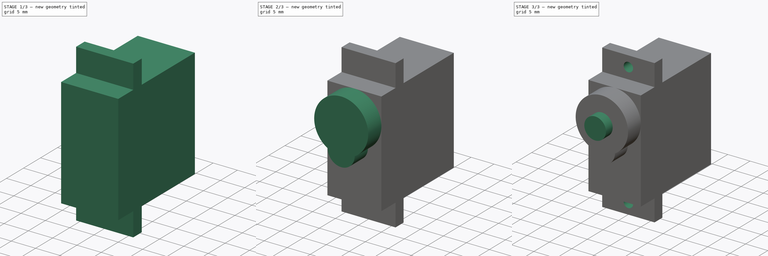
[diagram: build sequence overview — one tinted view per stage of 3, left to right]
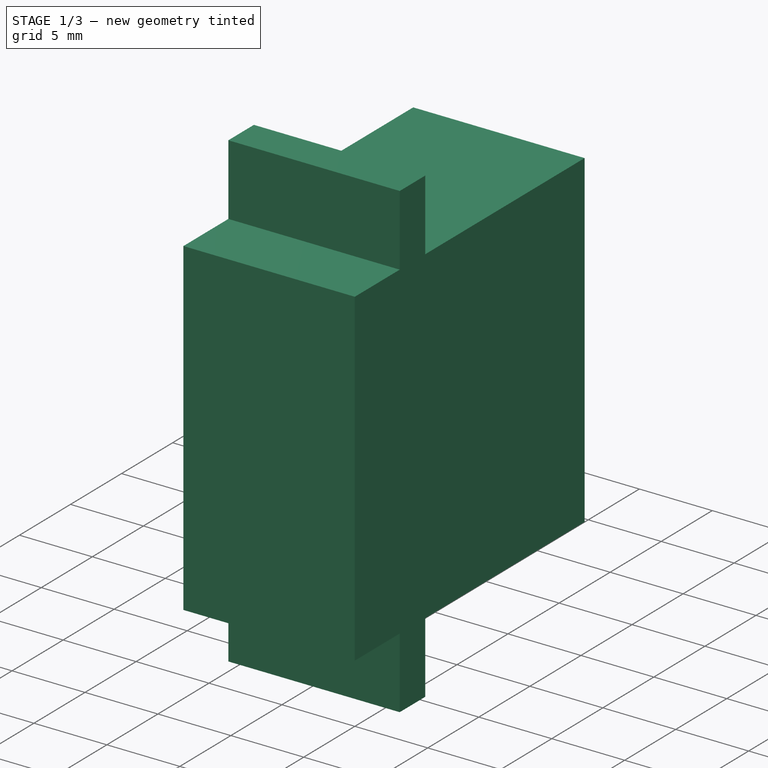
[diagram: stage 1 of 3 — iso view after this stage's code; geometry added in this stage tinted green]
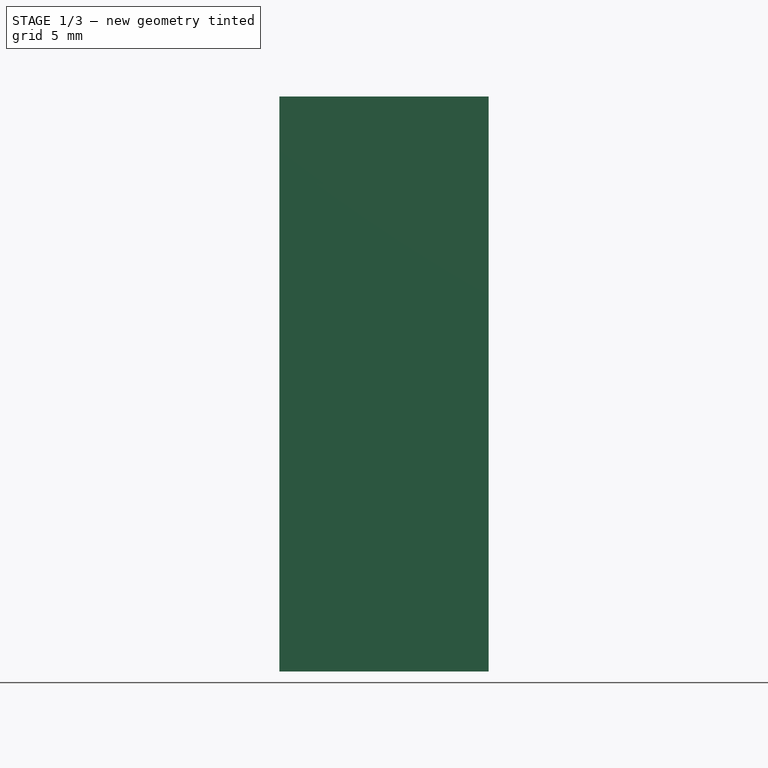
[diagram: stage 1 of 3 — front view after this stage's code; geometry added in this stage tinted green]
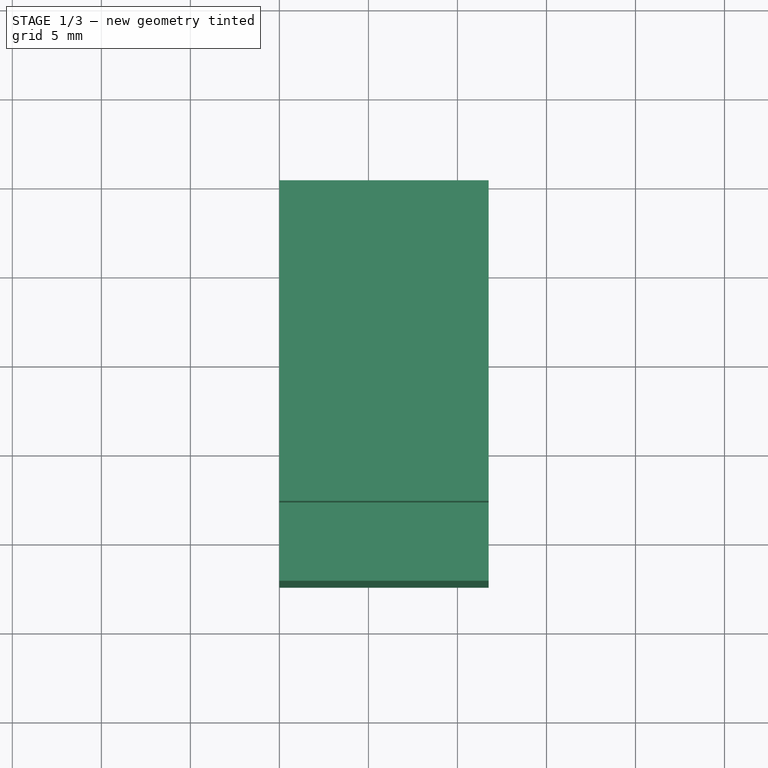
[diagram: stage 1 of 3 — top view after this stage's code; geometry added in this stage tinted green]
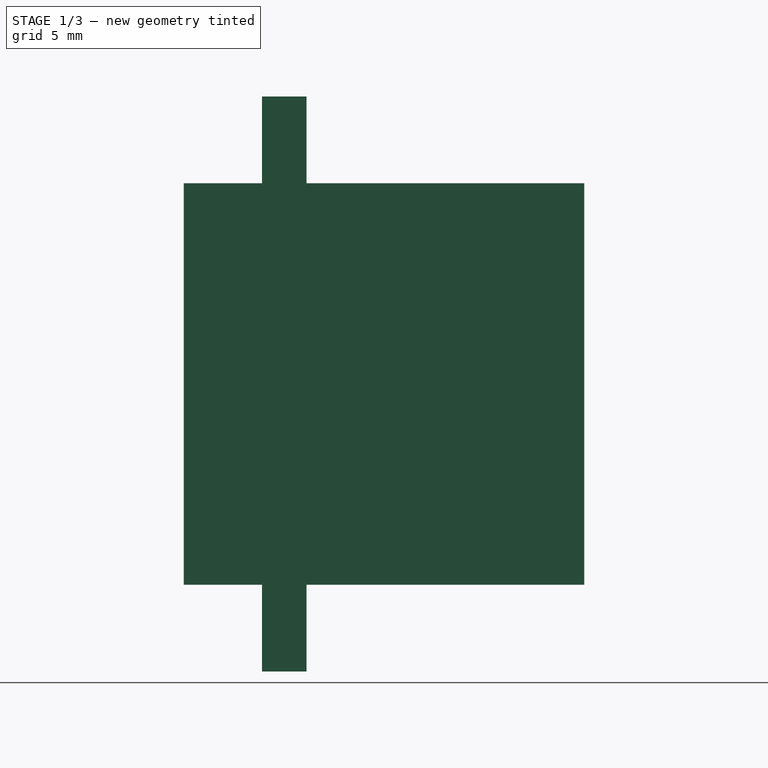
[diagram: stage 1 of 3 — right view after this stage's code; geometry added in this stage tinted green]
FCSTD DOCUMENT  (FreeCAD 0.19R24267 +148 (Git))
Label: Servo
License: All rights reserved
LicenseURL: http://en.wikipedia.org/wiki/All_rights_reserved
objects: Sketcher::SketchObject×5, PartDesign::Pad×3, PartDesign::Pocket×2, PartDesign::Body×1
note: 16 computed .brp shape members not serialized (recipe doc carries the construction recipe); baked Part::Feature solids carry a one-line shape summary decoded from their .brp

FEATURE [Sketcher::SketchObject] Sketch
  FullyConstrained = true
  MapMode = 5
  Placement = pos=(0,0,0) rot=(1,0,0;1.5708rad)
  Support = -> [XZ_Plane]
  sketch-geometry (4):
    g0: LineSegment StartX=0 StartY=0 StartZ=0 EndX=11.75 EndY=0 EndZ=0
    g1: LineSegment StartX=11.75 StartY=0 StartZ=0 EndX=11.75 EndY=32.3 EndZ=0
    g2: LineSegment StartX=11.75 StartY=32.3 StartZ=0 EndX=0 EndY=32.3 EndZ=0
    g3: LineSegment StartX=0 StartY=32.3 StartZ=0 EndX=0 EndY=0 EndZ=0
  constraints (11):
    c: Coincident(g0,g1)
    c: Coincident(g1,g2)
    c: Coincident(g2,g3)
    c: Coincident(g3,g0)
    c: Horizontal(g0)
    c: Horizontal(g2)
    c: Vertical(g1)
    c: Vertical(g3)
    c: Coincident(g0,g-1)
    c: DistanceY(g1,g1) = 32.3
    c: DistanceX(g2,g2) = 11.75
FEATURE [PartDesign::Pad] Pad
  Direction = (1,1,1)
  Length = 22.5
  Length2 = 100
  Placement = pos=(0,0,0) rot=(1,0,0;1.5708rad)
  Profile = -> Sketch
  Type = 0
FEATURE [Sketcher::SketchObject] Sketch001
  ExternalGeometry = -> [Pad]
  FullyConstrained = true
  MapMode = 5
  Placement = pos=(11.75,0,0) rot=(0.707107,0,0.707107;3.14159rad)
  Support = -> [Pad]
  sketch-geometry (16):
    g0: LineSegment StartX=27.425 StartY=0 StartZ=0 EndX=32.3 EndY=0 EndZ=0
    g1: LineSegment StartX=32.3 StartY=0 StartZ=0 EndX=32.3 EndY=15.6 EndZ=0
    g2: LineSegment StartX=32.3 StartY=15.6 StartZ=0 EndX=27.425 EndY=15.6 EndZ=0
    g3: LineSegment StartX=27.425 StartY=15.6 StartZ=0 EndX=27.425 EndY=0 EndZ=0
    g4: LineSegment StartX=27.425 StartY=22.5 StartZ=0 EndX=32.3 EndY=22.5 EndZ=0
    g5: LineSegment StartX=32.3 StartY=22.5 StartZ=0 EndX=32.3 EndY=18.1 EndZ=0
    g6: LineSegment StartX=32.3 StartY=18.1 StartZ=0 EndX=27.425 EndY=18.1 EndZ=0
    g7: LineSegment StartX=27.425 StartY=18.1 StartZ=0 EndX=27.425 EndY=22.5 EndZ=0
    g8: LineSegment StartX=4.875 StartY=22.5 StartZ=0 EndX=0 EndY=22.5 EndZ=0
    g9: LineSegment StartX=0 StartY=22.5 StartZ=0 EndX=0 EndY=18.1 EndZ=0
    g10: LineSegment StartX=0 StartY=18.1 StartZ=0 EndX=4.875 EndY=18.1 EndZ=0
    g11: LineSegment StartX=4.875 StartY=18.1 StartZ=0 EndX=4.875 EndY=22.5 EndZ=0
    g12: LineSegment StartX=0 StartY=15.6 StartZ=0 EndX=4.875 EndY=15.6 EndZ=0
    g13: LineSegment StartX=4.875 StartY=15.6 StartZ=0 EndX=4.875 EndY=0 EndZ=0
    g14: LineSegment StartX=4.875 StartY=0 StartZ=0 EndX=0 EndY=0 EndZ=0
    g15: LineSegment StartX=0 StartY=0 StartZ=0 EndX=0 EndY=15.6 EndZ=0
  constraints (48):
    c: Coincident(g0,g1)
    c: Coincident(g1,g2)
    c: Coincident(g2,g3)
    c: Coincident(g3,g0)
    c: Horizontal(g0)
    c: Horizontal(g2)
    c: Vertical(g1)
    c: Vertical(g3)
    c: PointOnObject(g0,g-1)
    c: PointOnObject(g1,g-4)
    c: Coincident(g4,g5)
    c: Coincident(g5,g6)
    c: Coincident(g6,g7)
    c: Coincident(g7,g4)
    c: Horizontal(g4)
    c: Horizontal(g6)
    c: Vertical(g5)
    c: Vertical(g7)
    c: PointOnObject(g4,g-3)
    c: PointOnObject(g5,g-4)
    c: Coincident(g8,g9)
    c: Coincident(g9,g10)
    c: Coincident(g10,g11)
    c: Coincident(g11,g8)
    c: Horizontal(g8)
    c: Horizontal(g10)
    c: Vertical(g9)
    c: Vertical(g11)
    c: PointOnObject(g8,g-3)
    c: PointOnObject(g9,g-2)
    c: Coincident(g12,g13)
    c: Coincident(g13,g14)
    c: Coincident(g14,g15)
    c: Coincident(g15,g12)
    c: Horizontal(g12)
    c: Horizontal(g14)
    c: Vertical(g13)
    c: Vertical(g15)
    c: PointOnObject(g12,g-2)
    c: PointOnObject(g13,g-1)
    c: Equal(g13,g3)
    c: Equal(g11,g7)
    c: Equal(g6,g2)
    c: Equal(g12,g10)
    c: Equal(g10,g6)
    c: DistanceY(g12,g10) = 2.5
    c: DistanceX(g12,g2) = 22.55
    c: DistanceY(g0,g6) = 18.1
FEATURE [PartDesign::Pocket] Pocket
  BaseFeature = -> Pad
  Length = 5
  Length2 = 100
  Placement = pos=(0,0,0) rot=(1,0,0;1.5708rad)
  Profile = -> Sketch001
  Type = 1
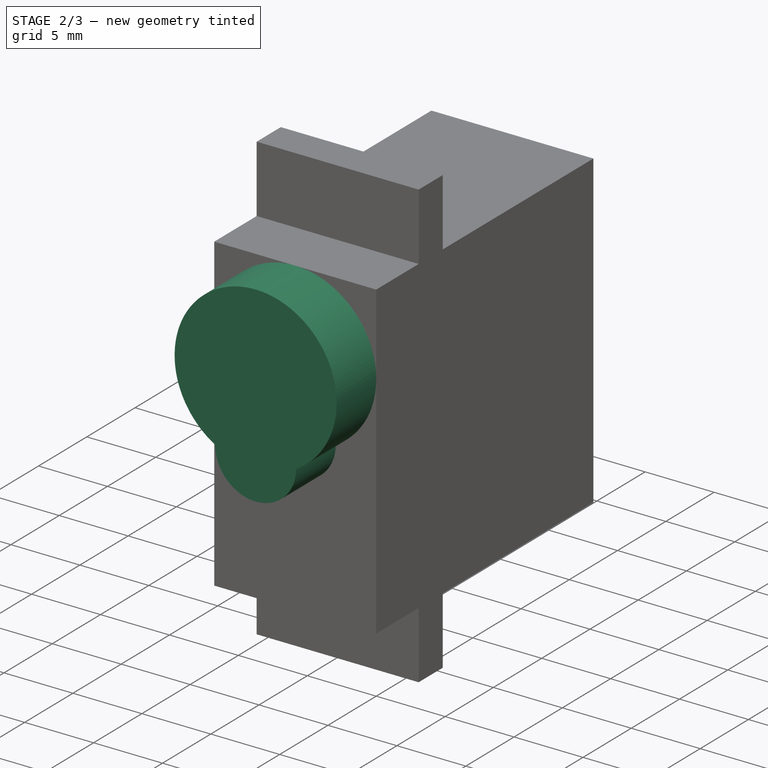
[diagram: stage 2 of 3 — iso view after this stage's code; geometry added in this stage tinted green]
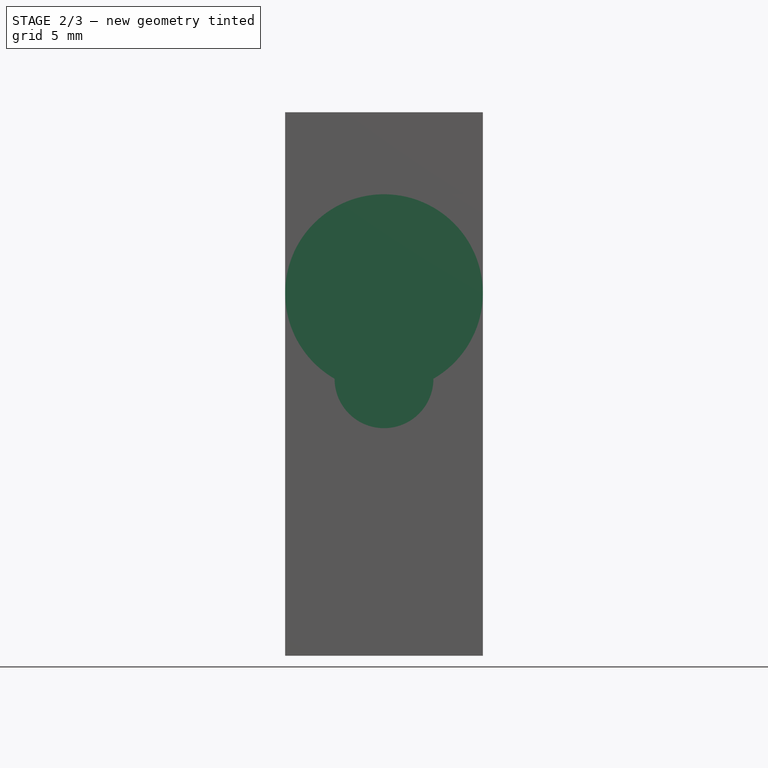
[diagram: stage 2 of 3 — front view after this stage's code; geometry added in this stage tinted green]
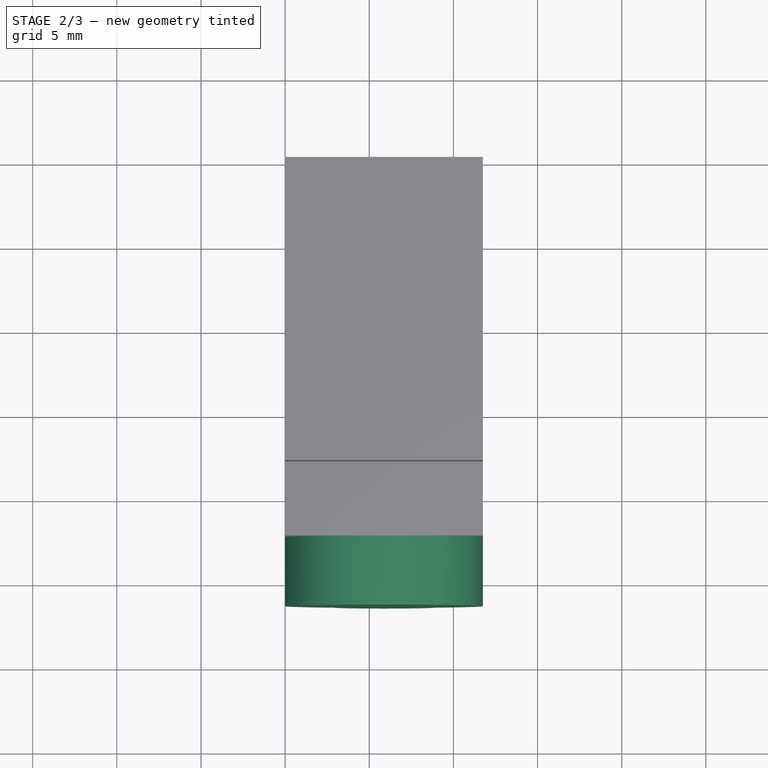
[diagram: stage 2 of 3 — top view after this stage's code; geometry added in this stage tinted green]
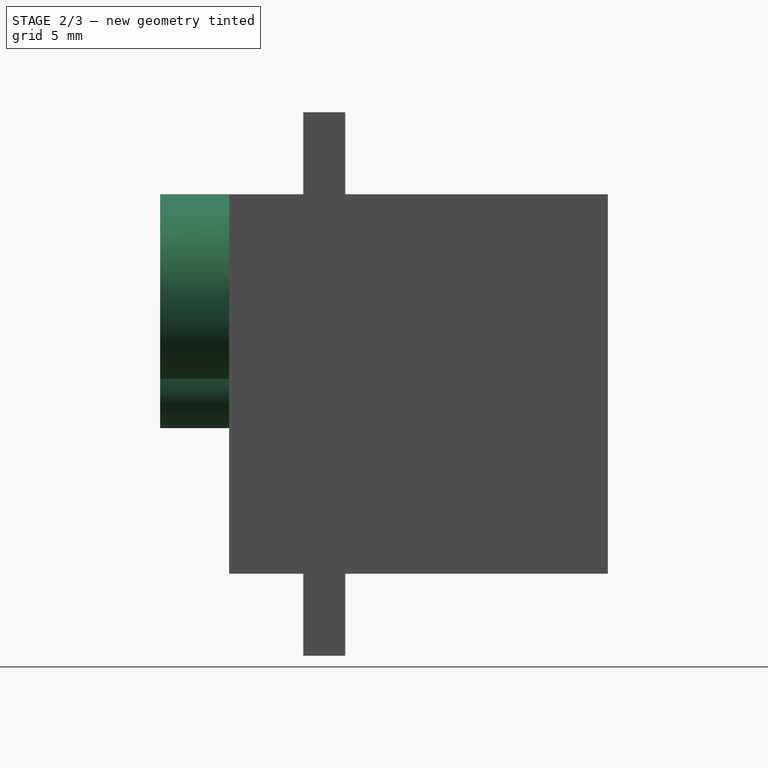
[diagram: stage 2 of 3 — right view after this stage's code; geometry added in this stage tinted green]
FEATURE [Sketcher::SketchObject] Sketch002
  ExternalGeometry = -> [Pocket]
  FullyConstrained = true
  MapMode = 5
  Placement = pos=(0,-22.5,-5e-15) rot=(1,0,0;1.5708rad)
  Support = -> [Pocket]
  sketch-geometry (8):
    g0: GeomPoint X=0 Y=21.55 Z=0
    g1: GeomPoint X=11.75 Y=21.55 Z=0
    g2: GeomPoint X=5.875 Y=27.425 Z=0
    g3: LineSegment StartX=5.875 StartY=27.425 StartZ=0 EndX=11.75 EndY=27.425 EndZ=0
    g4: LineSegment StartX=11.75 StartY=27.425 StartZ=0 EndX=11.75 EndY=21.55 EndZ=0
    g5: ArcOfCircle CenterX=5.875 CenterY=21.55 CenterZ=0 NormalX=0 NormalY=0 NormalZ=1 AngleXU=0 Radius=5.875 StartAngle=5.23599 EndAngle=10.472
    g6: LineSegment StartX=2.9375 StartY=16.4621 StartZ=0 EndX=8.8125 EndY=16.4621 EndZ=0
    g7: ArcOfCircle CenterX=5.875 CenterY=16.4621 CenterZ=0 NormalX=0 NormalY=0 NormalZ=1 AngleXU=0 Radius=2.9375 StartAngle=3.14159 EndAngle=6.28319
  constraints (19):
    c: PointOnObject(g0,g-2)
    c: Symmetric(g-3,g-3,g2)
    c: Vertical(g1,g-3)
    c: Horizontal(g1,g0)
    c: Coincident(g3,g2)
    c: Coincident(g3,g-3)
    c: Coincident(g3,g4)
    c: Coincident(g4,g1)
    c: Equal(g4,g3)
    c: PointOnObject(g2,g5)
    c: PointOnObject(g0,g5)
    c: PointOnObject(g1,g5)
    c: Horizontal(g5,g5)
    c: Coincident(g6,g5)
    c: Coincident(g6,g5)
    c: Equal(g6,g3)
    c: Coincident(g7,g5)
    c: Coincident(g7,g5)
    c: PointOnObject(g7,g6)
FEATURE [PartDesign::Pad] Pad001
  BaseFeature = -> Pocket
  Direction = (1,1,1)
  Length = 4.1
  Length2 = 100
  Placement = pos=(0,0,0) rot=(1,0,0;1.5708rad)
  Profile = -> Sketch002
  Type = 0
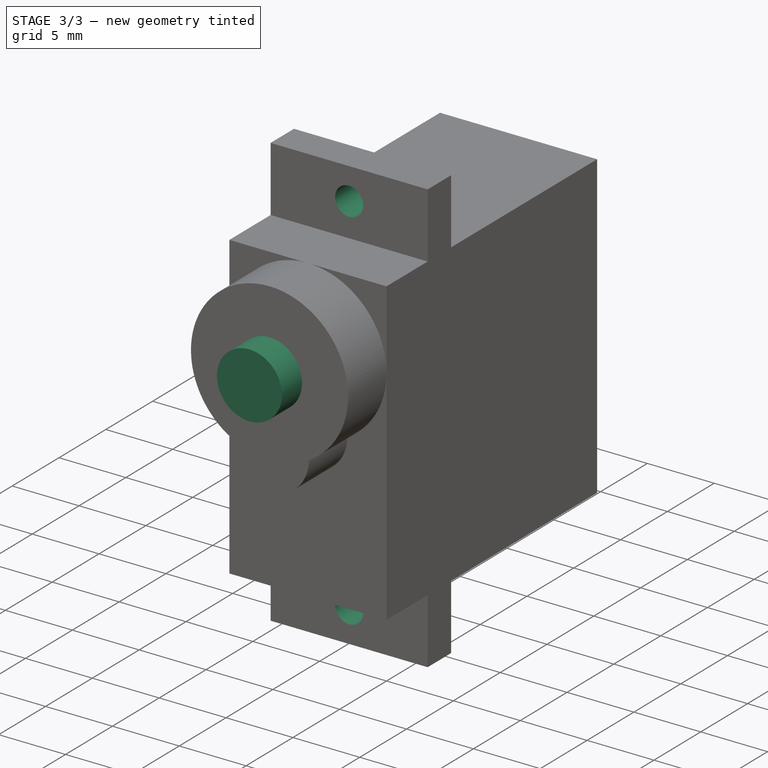
[diagram: stage 3 of 3 — iso view after this stage's code; geometry added in this stage tinted green]
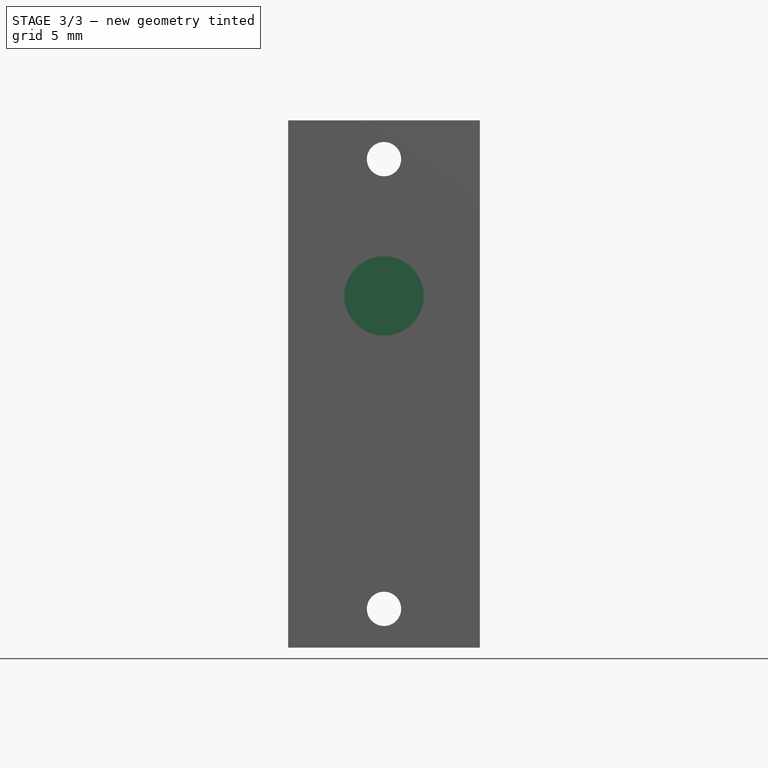
[diagram: stage 3 of 3 — front view after this stage's code; geometry added in this stage tinted green]
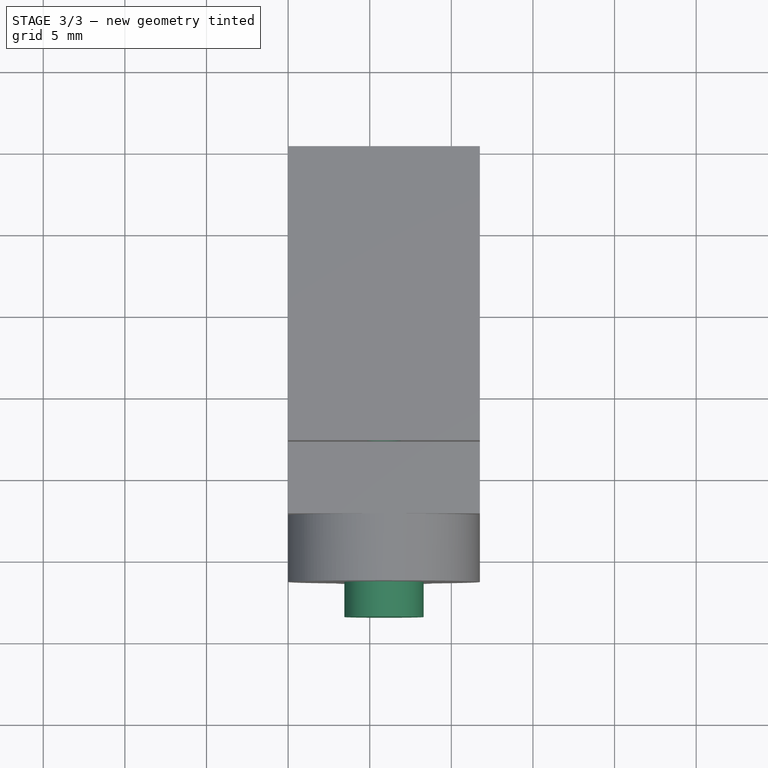
[diagram: stage 3 of 3 — top view after this stage's code; geometry added in this stage tinted green]
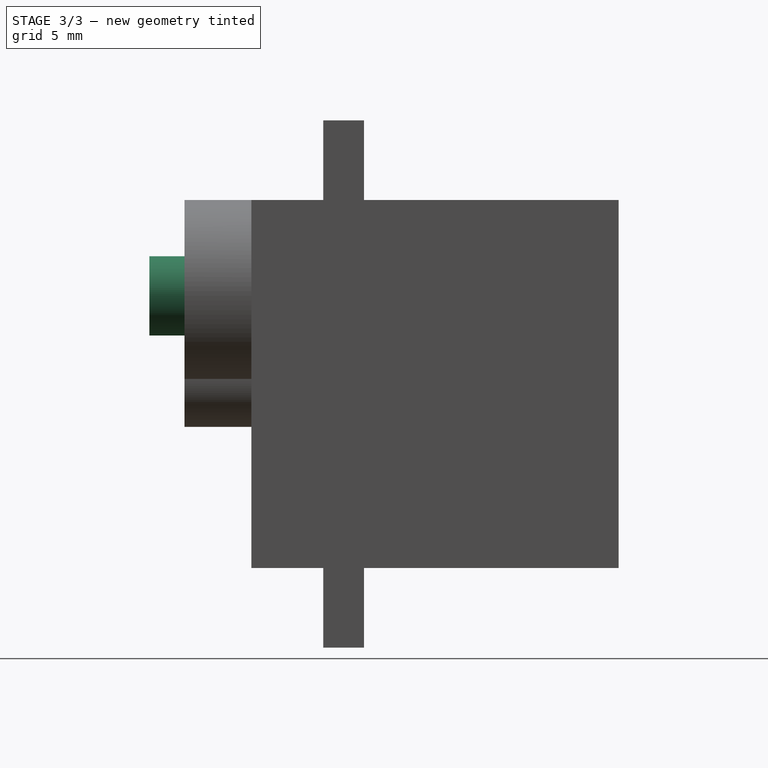
[diagram: stage 3 of 3 — right view after this stage's code; geometry added in this stage tinted green]
FEATURE [Sketcher::SketchObject] Sketch003
  ExternalGeometry = -> [Pad001]
  FullyConstrained = true
  MapMode = 5
  Placement = pos=(0,-26.6,-9.5e-15) rot=(1,0,0;1.5708rad)
  Support = -> [Pad001]
  sketch-geometry (1):
    g0: Circle CenterX=5.875 CenterY=21.55 CenterZ=0 NormalX=0 NormalY=0 NormalZ=1 AngleXU=0 Radius=2.43
  constraints (2):
    c: Coincident(g0,g-3)
    c: Radius(g0) = 2.43
FEATURE [PartDesign::Pad] Pad002
  BaseFeature = -> Pad001
  Direction = (1,1,1)
  Length = 2.15
  Length2 = 100
  Placement = pos=(0,0,0) rot=(1,0,0;1.5708rad)
  Profile = -> Sketch003
  Type = 0
FEATURE [Sketcher::SketchObject] Sketch004
  ExternalGeometry = -> [Pad002]
  FullyConstrained = true
  MapMode = 5
  Placement = pos=(0,-18.1,-4e-15) rot=(1,0,0;1.5708rad)
  Support = -> [Pad002]
  sketch-geometry (4):
    g0: Circle CenterX=5.875 CenterY=29.925 CenterZ=0 NormalX=0 NormalY=0 NormalZ=1 AngleXU=0 Radius=1.05
    g1: Circle CenterX=5.875 CenterY=2.375 CenterZ=0 NormalX=0 NormalY=0 NormalZ=1 AngleXU=0 Radius=1.05
    g2: LineSegment StartX=5.875 StartY=2.375 StartZ=0 EndX=5.875 EndY=4.875 EndZ=0
    g3: LineSegment StartX=5.875 StartY=27.425 StartZ=0 EndX=5.875 EndY=29.925 EndZ=0
  constraints (11):
    c: Equal(g1,g0)
    c: Vertical(g0,g-11)
    c: Vertical(g-11,g1)
    c: Coincident(g2,g1)
    c: PointOnObject(g2,g-7)
    c: Vertical(g2)
    c: Coincident(g3,g-11)
    c: Coincident(g3,g0)
    c: Equal(g3,g2)
    c: DistanceY(g2,g2) = 2.5
    c: Radius(g1) = 1.05
FEATURE [PartDesign::Pocket] Pocket001
  BaseFeature = -> Pad002
  Length = 5
  Length2 = 100
  Placement = pos=(0,0,0) rot=(1,0,0;1.5708rad)
  Profile = -> Sketch004
  Type = 0
FEATURE [PartDesign::Body] Body
  Group = -> [Sketch,Pad,Sketch001,Pocket,Sketch002,Pad001,Sketch003,Pad002,Sketch004,Pocket001]
  Origin = -> Origin
  Tip = -> Pocket001
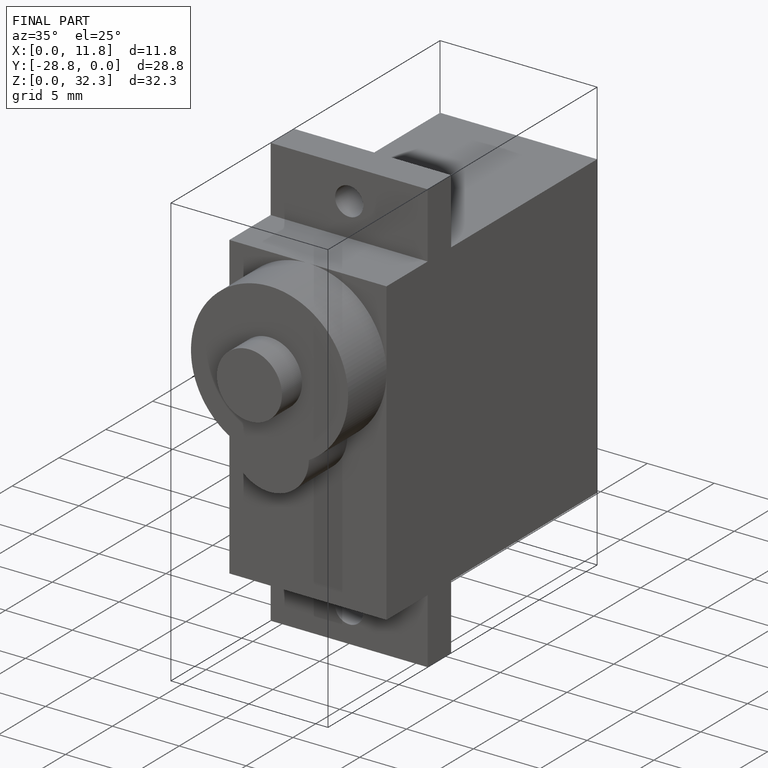
[diagram: finished part — iso view with bounding-box wireframe]
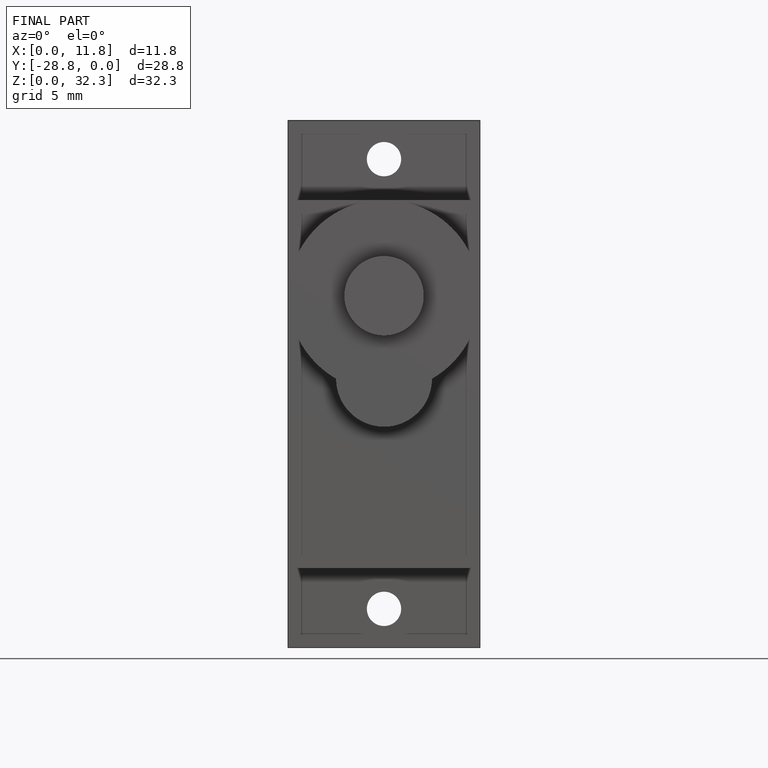
[diagram: finished part — front view with bounding-box wireframe]
